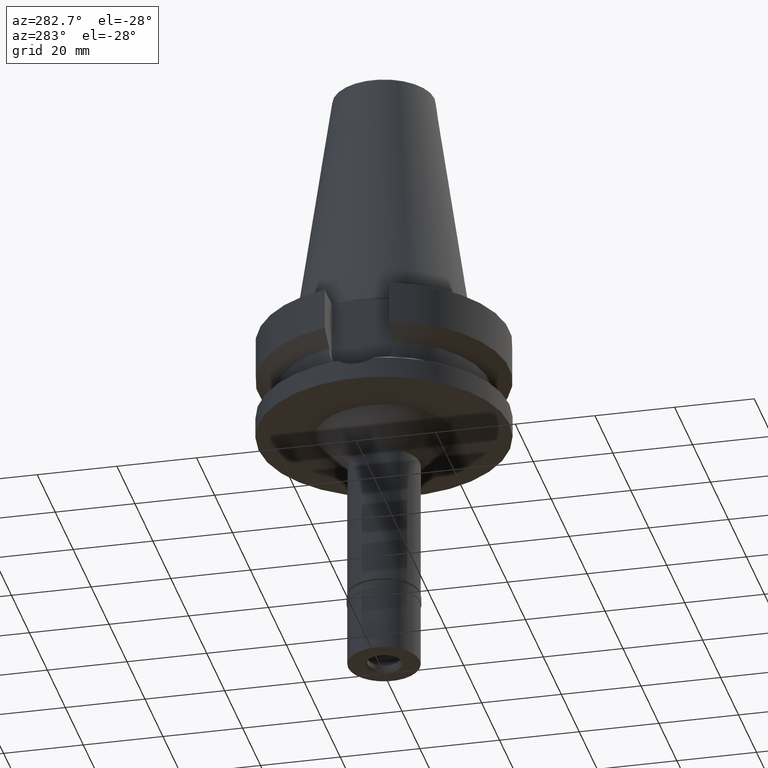
[diagram: clean part render]
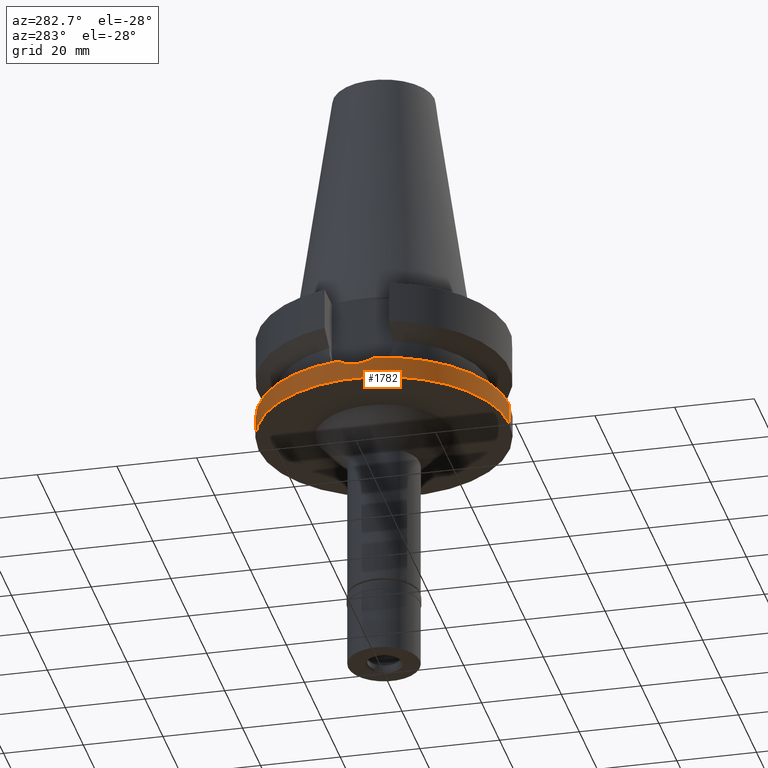
[diagram: same view with one face highlighted and labeled with its STEP entity id]
A machine part, auxiliary view. The second image highlights one B-rep face of the part: STEP entity #1782.
In plain terms, the highlighted cylindrical surface (partial cylindrical patch) has radius 31.5 mm, axis along (0, 0, -1).
Its self-contained STEP definition (entity closure, byte-faithful):
#64 = CARTESIAN_POINT ( 'NONE',  ( -31.43626287792008256, -2.006631902255872291, -22.74703281021089651 ) ) ;
#76 = CARTESIAN_POINT ( 'NONE',  ( -31.49983390086147494, -0.3969750118427753938, -22.99934653945475205 ) ) ;
#92 = CARTESIAN_POINT ( 'NONE',  ( 0.0000000000000000000, 31.50000000000000000, -27.00000000000000000 ) ) ;
#97 = DIRECTION ( 'NONE',  ( 0.0000000000000000000, 0.0000000000000000000, 1.000000000000000000 ) ) ;
#101 = CARTESIAN_POINT ( 'NONE',  ( 0.0000000000000000000, 31.50000000000000000, -21.63449434733000132 ) ) ;
#118 = DIRECTION ( 'NONE',  ( 0.0000000000000000000, 1.099151708819000049E-13, -1.000000000000000000 ) ) ;
#155 = CARTESIAN_POINT ( 'NONE',  ( 0.0000000000000000000, 0.0000000000000000000, -21.63449434733000132 ) ) ;
#256 = VERTEX_POINT ( 'NONE', #844 ) ;
#257 = VERTEX_POINT ( 'NONE', #1678 ) ;
#285 = CARTESIAN_POINT ( 'NONE',  ( -31.41215996881429362, 2.351075174623101116, -22.64906433400166819 ) ) ;
#304 = AXIS2_PLACEMENT_3D ( 'NONE', #1556, #2204, #1573 ) ;
#388 = CARTESIAN_POINT ( 'NONE',  ( 0.0000000000000000000, -31.50000000000000000, -21.63449434733000132 ) ) ;
#449 = VECTOR ( 'NONE', #2827, 1000.000000000000000 ) ;
#484 = VERTEX_POINT ( 'NONE', #2542 ) ;
#490 = VERTEX_POINT ( 'NONE', #1199 ) ;
#492 = CARTESIAN_POINT ( 'NONE',  ( -31.42475038160836576, -2.177015934620535109, -22.70032760189781129 ) ) ;
#502 = AXIS2_PLACEMENT_3D ( 'NONE', #1213, #1834, #1445 ) ;
#507 = CARTESIAN_POINT ( 'NONE',  ( -31.23226349874883923, 4.115292716089542502, -21.88294107138520062 ) ) ;
#521 = CARTESIAN_POINT ( 'NONE',  ( -31.17899877608999759, -4.485536235554000051, -21.63449434733000132 ) ) ;
#737 = EDGE_CURVE ( 'NONE', #1443, #490, #2848, .T. ) ;
#746 = CARTESIAN_POINT ( 'NONE',  ( -31.47164699824155676, 1.548069333823772320, -22.89151015003318435 ) ) ;
#762 = CARTESIAN_POINT ( 'NONE',  ( 0.0000000000000000000, 2.117904174444999906E-14, -27.00000000000000000 ) ) ;
#823 = EDGE_CURVE ( 'NONE', #1443, #484, #920, .T. ) ;
#844 = CARTESIAN_POINT ( 'NONE',  ( 0.0000000000000000000, 31.50000000000000000, -21.63449434733000132 ) ) ;
#920 = CIRCLE ( 'NONE', #1395, 31.50000000000000000 ) ;
#949 = CARTESIAN_POINT ( 'NONE',  ( -31.39044683880278797, 2.626560164691852606, -22.56039741363646911 ) ) ;
#1033 = EDGE_LOOP ( 'NONE', ( #2368, #1135, #2897, #1977, #1657, #2262 ) ) ;
#1066 = CIRCLE ( 'NONE', #502, 31.50000000000001421 ) ;
#1114 = AXIS2_PLACEMENT_3D ( 'NONE', #762, #97, #2155 ) ;
#1135 = ORIENTED_EDGE ( 'NONE', *, *, #1464, .T. ) ;
#1199 = CARTESIAN_POINT ( 'NONE',  ( 0.0000000000000000000, -31.50000000000000000, -27.00000000000000000 ) ) ;
#1212 = B_SPLINE_CURVE_WITH_KNOTS ( 'NONE', 3,
 ( #2525, #507, #2733, #2745, #1868, #2086, #949, #2341, #2063, #1608, #285, #746, #2565, #76, #1644, #2096, #1857, #2508, #64, #492, #1399, #2303, #2782, #1427, #2293, #521 ),
 .UNSPECIFIED., .F., .F.,
 ( 4, 2, 2, 1, 1, 2, 2, 2, 2, 2, 1, 1, 2, 2, 4 ),
 ( 0.0000000000000000000, 0.1249999999999934497, 0.1874999999999903966, 0.2187499999999890365, 0.2343749999999885369, 0.2421874999999885925, 0.2499999999999886202, 0.4999999999999917843, 0.6249999999999934497, 0.6874999999999941158, 0.7187499999999944489, 0.7343749999999945599, 0.7421874999999947820, 0.7499999999999948930, 1.000000000000000000 ),
 .UNSPECIFIED. ) ;
#1213 = CARTESIAN_POINT ( 'NONE',  ( 0.0000000000000000000, 0.0000000000000000000, -21.63449434733000132 ) ) ;
#1311 = DIRECTION ( 'NONE',  ( 0.0000000000000000000, -1.000000000000000000, 0.0000000000000000000 ) ) ;
#1337 = VERTEX_POINT ( 'NONE', #92 ) ;
#1395 = AXIS2_PLACEMENT_3D ( 'NONE', #155, #2450, #1311 ) ;
#1399 = CARTESIAN_POINT ( 'NONE',  ( -31.41956283410528883, -2.249933947491782771, -22.67922626018359367 ) ) ;
#1427 = CARTESIAN_POINT ( 'NONE',  ( -31.36242810780111867, -3.016517149211044302, -22.44628286690499763 ) ) ;
#1443 = VERTEX_POINT ( 'NONE', #2344 ) ;
#1445 = DIRECTION ( 'NONE',  ( -0.9898094849552905306, 0.1423979757318985240, 0.0000000000000000000 ) ) ;
#1464 = EDGE_CURVE ( 'NONE', #256, #1337, #1882, .T. ) ;
#1556 = CARTESIAN_POINT ( 'NONE',  ( 0.0000000000000000000, 2.117904174444999906E-14, 72.93999999999999773 ) ) ;
#1573 = DIRECTION ( 'NONE',  ( 0.0000000000000000000, -1.000000000000000000, 0.0000000000000000000 ) ) ;
#1608 = CARTESIAN_POINT ( 'NONE',  ( -31.41073880106056393, 2.369935016488923463, -22.64326995266646847 ) ) ;
#1644 = CARTESIAN_POINT ( 'NONE',  ( -31.49245662183222549, -0.7860806205553541037, -22.97124446936662778 ) ) ;
#1657 = ORIENTED_EDGE ( 'NONE', *, *, #823, .T. ) ;
#1678 = CARTESIAN_POINT ( 'NONE',  ( -31.17899877608999759, 4.485536235554000051, -21.63449434733000132 ) ) ;
#1685 = EDGE_CURVE ( 'NONE', #1337, #490, #2895, .T. ) ;
#1782 = ADVANCED_FACE ( 'NONE', ( #2167 ), #1993, .T. ) ;
#1834 = DIRECTION ( 'NONE',  ( 0.0000000000000000000, 0.0000000000000000000, -1.000000000000000000 ) ) ;
#1857 = CARTESIAN_POINT ( 'NONE',  ( -31.46147035098397637, -1.567325353168736557, -22.84848407896600619 ) ) ;
#1868 = CARTESIAN_POINT ( 'NONE',  ( -31.35500515176654801, 3.021249270677012433, -22.41390817710080796 ) ) ;
#1882 = LINE ( 'NONE', #101, #2421 ) ;
#1977 = ORIENTED_EDGE ( 'NONE', *, *, #737, .F. ) ;
#1993 = CYLINDRICAL_SURFACE ( 'NONE', #304, 31.50000000000000000 ) ;
#2063 = CARTESIAN_POINT ( 'NONE',  ( -31.40749924633454171, 2.412404385179172550, -22.63005856939578919 ) ) ;
#2086 = CARTESIAN_POINT ( 'NONE',  ( -31.37907404449259730, 2.757345869846625774, -22.51362260176825458 ) ) ;
#2096 = CARTESIAN_POINT ( 'NONE',  ( -31.47056956142851192, -1.371768385702163640, -22.88471473279458124 ) ) ;
#2155 = DIRECTION ( 'NONE',  ( 0.0000000000000000000, 1.000000000000000000, 0.0000000000000000000 ) ) ;
#2167 = FACE_OUTER_BOUND ( 'NONE', #1033, .T. ) ;
#2204 = DIRECTION ( 'NONE',  ( 0.0000000000000000000, 0.0000000000000000000, -1.000000000000000000 ) ) ;
#2262 = ORIENTED_EDGE ( 'NONE', *, *, #2461, .F. ) ;
#2293 = CARTESIAN_POINT ( 'NONE',  ( -31.28458814130795318, -3.751583700997234150, -22.12700290787185509 ) ) ;
#2303 = CARTESIAN_POINT ( 'NONE',  ( -31.41604810898936861, -2.298520402996900636, -22.66491706411640550 ) ) ;
#2341 = CARTESIAN_POINT ( 'NONE',  ( -31.40255720773888726, 2.476286381883614940, -22.60989661472570589 ) ) ;
#2344 = CARTESIAN_POINT ( 'NONE',  ( 0.0000000000000000000, -31.50000000000000000, -21.63449434733000132 ) ) ;
#2368 = ORIENTED_EDGE ( 'NONE', *, *, #2444, .T. ) ;
#2421 = VECTOR ( 'NONE', #118, 1000.000000000000000 ) ;
#2444 = EDGE_CURVE ( 'NONE', #257, #256, #1066, .T. ) ;
#2450 = DIRECTION ( 'NONE',  ( 0.0000000000000000000, 0.0000000000000000000, -1.000000000000000000 ) ) ;
#2461 = EDGE_CURVE ( 'NONE', #257, #484, #1212, .T. ) ;
#2508 = CARTESIAN_POINT ( 'NONE',  ( -31.44511624985221587, -1.860263253875148237, -22.78274763434728101 ) ) ;
#2525 = CARTESIAN_POINT ( 'NONE',  ( -31.17899877608999759, 4.485536235554000051, -21.63449434733000132 ) ) ;
#2542 = CARTESIAN_POINT ( 'NONE',  ( -31.17899877608999759, -4.485536235554000051, -21.63449434733000132 ) ) ;
#2565 = CARTESIAN_POINT ( 'NONE',  ( -31.50032345422955871, 0.7535101635719497759, -23.00127306222023904 ) ) ;
#2733 = CARTESIAN_POINT ( 'NONE',  ( -31.27847059951077568, 3.743975710443450122, -22.08755284939934072 ) ) ;
#2745 = CARTESIAN_POINT ( 'NONE',  ( -31.33719481780826399, 3.200305720786622121, -22.33920983550274642 ) ) ;
#2782 = CARTESIAN_POINT ( 'NONE',  ( -31.41408400581227767, -2.325182935684062979, -22.65691273709629172 ) ) ;
#2827 = DIRECTION ( 'NONE',  ( 0.0000000000000000000, -1.105773104655000034E-13, -1.000000000000000000 ) ) ;
#2848 = LINE ( 'NONE', #388, #449 ) ;
#2895 = CIRCLE ( 'NONE', #1114, 31.50000000000000000 ) ;
#2897 = ORIENTED_EDGE ( 'NONE', *, *, #1685, .T. ) ;